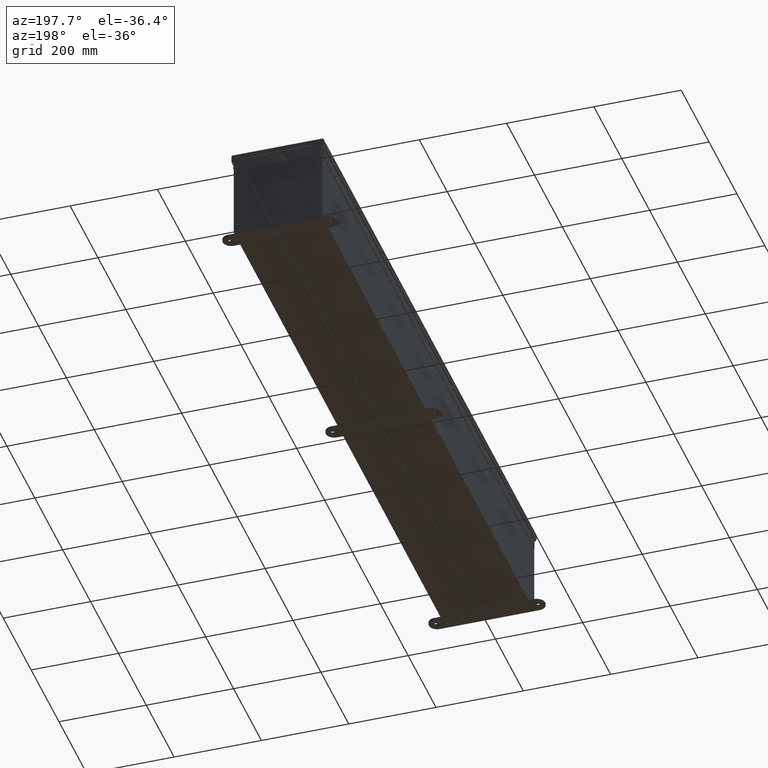
[diagram: clean part render]
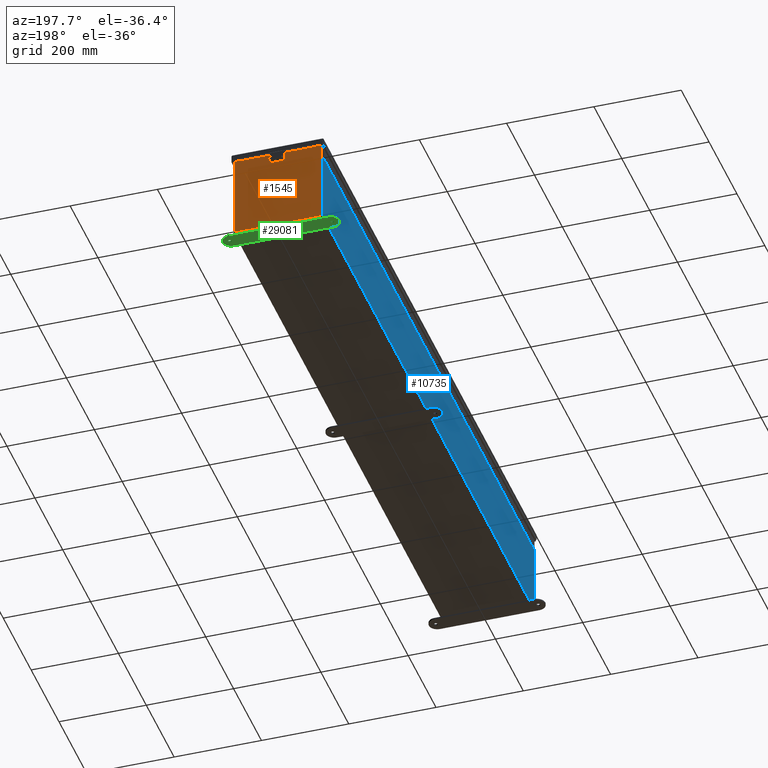
[diagram: same view with three faces highlighted in distinct colors, each labeled with its STEP entity id]
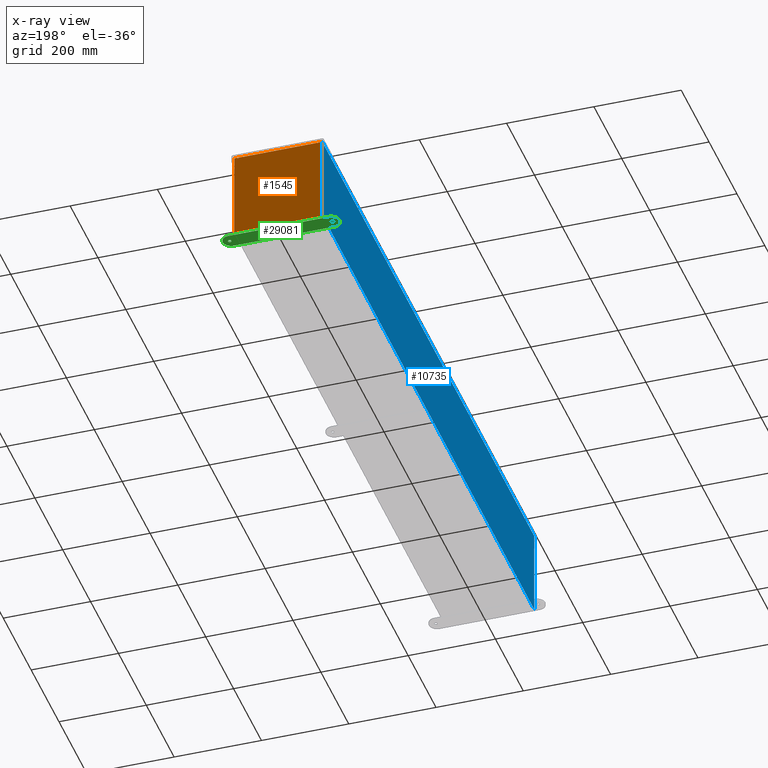
[diagram: x-ray of the same camera — body ghosted, the three highlighted faces saturated]
A machine part, auxiliary view with three faces highlighted in distinct colors.
The next image is the same camera in x-ray (body ghosted, the three faces saturated) — at least one of them is partly hidden behind the body in this view.
Their STEP definitions:

[orange] entity #1545 — the highlighted planar face has unit normal (0, -1, 0).
#68 = LINE ( 'NONE', #29814, #16807 ) ;
#103 = EDGE_CURVE ( 'NONE', #25600, #26783, #6706, .T. ) ;
#230 = EDGE_CURVE ( 'NONE', #33754, #13214, #19253, .T. ) ;
#686 = CARTESIAN_POINT ( 'NONE',  ( -3.582300000000000000, 0.0000000000000000000, 3.912299999999999200 ) ) ;
#1545 = ADVANCED_FACE ( 'NONE', ( #12372 ), #3800, .F. ) ;
#1753 = DIRECTION ( 'NONE',  ( 0.0000000000000000000, 0.0000000000000000000, -1.000000000000000000 ) ) ;
#2679 = DIRECTION ( 'NONE',  ( -0.0000000000000000000, -0.0000000000000000000, 1.000000000000000000 ) ) ;
#3800 = PLANE ( 'NONE',  #35254 ) ;
#4922 = ORIENTED_EDGE ( 'NONE', *, *, #22307, .F. ) ;
#5171 = ORIENTED_EDGE ( 'NONE', *, *, #16122, .T. ) ;
#5269 = VECTOR ( 'NONE', #35371, 39.37007874015748100 ) ;
#5681 = VECTOR ( 'NONE', #32198, 39.37007874015748100 ) ;
#6096 = CARTESIAN_POINT ( 'NONE',  ( -3.925300000000000500, 0.0000000000000000000, -3.925300000000000500 ) ) ;
#6706 = LINE ( 'NONE', #28840, #5681 ) ;
#6928 = EDGE_LOOP ( 'NONE', ( #4922, #31500, #14462, #28888, #14134, #19732, #10389, #19469, #5171, #15814, #34929, #23452 ) ) ;
#6958 = CARTESIAN_POINT ( 'NONE',  ( 3.619649999999999100, 0.0000000000000000000, 3.874949999999999200 ) ) ;
#7452 = DIRECTION ( 'NONE',  ( 0.0000000000000000000, 0.0000000000000000000, 1.000000000000000000 ) ) ;
#8365 = LINE ( 'NONE', #12064, #42859 ) ;
#8387 = CIRCLE ( 'NONE', #13928, 0.01867500000000003900 ) ;
#9347 = VECTOR ( 'NONE', #9556, 39.37007874015748100 ) ;
#9394 = AXIS2_PLACEMENT_3D ( 'NONE', #41780, #21781, #1753 ) ;
#9417 = CARTESIAN_POINT ( 'NONE',  ( -3.925300000000000500, 0.0000000000000000000, 3.925300000000000500 ) ) ;
#9556 = DIRECTION ( 'NONE',  ( 1.000000000000000000, 0.0000000000000000000, 0.0000000000000000000 ) ) ;
#10086 = CIRCLE ( 'NONE', #9394, 0.01867500000000003900 ) ;
#10389 = ORIENTED_EDGE ( 'NONE', *, *, #31175, .F. ) ;
#10877 = VERTEX_POINT ( 'NONE', #21941 ) ;
#11804 = CARTESIAN_POINT ( 'NONE',  ( -3.925300000000000500, 0.0000000000000000000, 3.925300000000000500 ) ) ;
#12064 = CARTESIAN_POINT ( 'NONE',  ( -3.582300000000000000, 0.0000000000000000000, 3.912299999999999200 ) ) ;
#12372 = FACE_OUTER_BOUND ( 'NONE', #6928, .T. ) ;
#12940 = LINE ( 'NONE', #19323, #20727 ) ;
#13074 = CARTESIAN_POINT ( 'NONE',  ( 3.619650000000000500, 0.0000000000000000000, 3.925300000000000500 ) ) ;
#13214 = VERTEX_POINT ( 'NONE', #20771 ) ;
#13928 = AXIS2_PLACEMENT_3D ( 'NONE', #38603, #18597, #41957 ) ;
#14045 = DIRECTION ( 'NONE',  ( 0.0000000000000000000, -1.000000000000000000, 0.0000000000000000000 ) ) ;
#14134 = ORIENTED_EDGE ( 'NONE', *, *, #43104, .F. ) ;
#14226 = CARTESIAN_POINT ( 'NONE',  ( 3.925299999999999100, 0.0000000000000000000, 3.925300000000000500 ) ) ;
#14247 = VECTOR ( 'NONE', #22387, 39.37007874015748100 ) ;
#14462 = ORIENTED_EDGE ( 'NONE', *, *, #22958, .F. ) ;
#14590 = VERTEX_POINT ( 'NONE', #686 ) ;
#14900 = DIRECTION ( 'NONE',  ( -1.000000000000000000, -0.0000000000000000000, -0.0000000000000000000 ) ) ;
#15108 = LINE ( 'NONE', #34764, #40711 ) ;
#15217 = CARTESIAN_POINT ( 'NONE',  ( 3.619649999999915200, 0.0000000000000000000, -7.867722221753078700E-014 ) ) ;
#15814 = ORIENTED_EDGE ( 'NONE', *, *, #25930, .T. ) ;
#16122 = EDGE_CURVE ( 'NONE', #26783, #10877, #38301, .T. ) ;
#16409 = EDGE_CURVE ( 'NONE', #27361, #27675, #10086, .T. ) ;
#16640 = CARTESIAN_POINT ( 'NONE',  ( 3.582299999999999200, 0.0000000000000000000, 3.912299999999999200 ) ) ;
#16807 = VECTOR ( 'NONE', #33157, 39.37007874015748100 ) ;
#16948 = CARTESIAN_POINT ( 'NONE',  ( -3.582300000000000000, 0.0000000000000000000, 3.874949999999999200 ) ) ;
#18265 = VERTEX_POINT ( 'NONE', #6096 ) ;
#18597 = DIRECTION ( 'NONE',  ( -0.0000000000000000000, 1.000000000000000000, -0.0000000000000000000 ) ) ;
#19253 = LINE ( 'NONE', #9417, #9347 ) ;
#19323 = CARTESIAN_POINT ( 'NONE',  ( -3.925300000000000500, 0.0000000000000000000, 3.925300000000000500 ) ) ;
#19469 = ORIENTED_EDGE ( 'NONE', *, *, #103, .T. ) ;
#19732 = ORIENTED_EDGE ( 'NONE', *, *, #23591, .F. ) ;
#20727 = VECTOR ( 'NONE', #2679, 39.37007874015748100 ) ;
#20771 = CARTESIAN_POINT ( 'NONE',  ( -3.619650000000000500, 0.0000000000000000000, 3.925300000000000500 ) ) ;
#21781 = DIRECTION ( 'NONE',  ( -0.0000000000000000000, 1.000000000000000000, -0.0000000000000000000 ) ) ;
#21941 = CARTESIAN_POINT ( 'NONE',  ( 3.925299999999999100, 0.0000000000000000000, -3.925300000000000500 ) ) ;
#22307 = EDGE_CURVE ( 'NONE', #27675, #13214, #41940, .T. ) ;
#22387 = DIRECTION ( 'NONE',  ( 0.0000000000000000000, 0.0000000000000000000, 1.000000000000000000 ) ) ;
#22730 = DIRECTION ( 'NONE',  ( 0.0000000000000000000, 0.0000000000000000000, -1.000000000000000000 ) ) ;
#22958 = EDGE_CURVE ( 'NONE', #14590, #27361, #68, .T. ) ;
#23452 = ORIENTED_EDGE ( 'NONE', *, *, #230, .T. ) ;
#23591 = EDGE_CURVE ( 'NONE', #24591, #33822, #8387, .T. ) ;
#24098 = CARTESIAN_POINT ( 'NONE',  ( 3.582299999999999200, 0.0000000000000000000, 0.0000000000000000000 ) ) ;
#24591 = VERTEX_POINT ( 'NONE', #6958 ) ;
#25400 = EDGE_CURVE ( 'NONE', #14590, #41632, #8365, .T. ) ;
#25600 = VERTEX_POINT ( 'NONE', #13074 ) ;
#25674 = CARTESIAN_POINT ( 'NONE',  ( 3.582299999999999200, 0.0000000000000000000, 3.874949999999999200 ) ) ;
#25930 = EDGE_CURVE ( 'NONE', #10877, #18265, #15108, .T. ) ;
#26783 = VERTEX_POINT ( 'NONE', #14226 ) ;
#27326 = CARTESIAN_POINT ( 'NONE',  ( 0.0000000000000000000, 0.0000000000000000000, 0.0000000000000000000 ) ) ;
#27361 = VERTEX_POINT ( 'NONE', #16948 ) ;
#27402 = LINE ( 'NONE', #24098, #43076 ) ;
#27675 = VERTEX_POINT ( 'NONE', #42937 ) ;
#28840 = CARTESIAN_POINT ( 'NONE',  ( -3.925300000000000500, 0.0000000000000000000, 3.925300000000000500 ) ) ;
#28888 = ORIENTED_EDGE ( 'NONE', *, *, #25400, .T. ) ;
#29814 = CARTESIAN_POINT ( 'NONE',  ( -3.582300000000000000, 0.0000000000000000000, 0.0000000000000000000 ) ) ;
#31175 = EDGE_CURVE ( 'NONE', #25600, #24591, #38727, .T. ) ;
#31500 = ORIENTED_EDGE ( 'NONE', *, *, #16409, .F. ) ;
#32055 = DIRECTION ( 'NONE',  ( 1.000000000000000000, 0.0000000000000000000, 0.0000000000000000000 ) ) ;
#32198 = DIRECTION ( 'NONE',  ( 1.000000000000000000, 0.0000000000000000000, 0.0000000000000000000 ) ) ;
#33157 = DIRECTION ( 'NONE',  ( 0.0000000000000000000, 0.0000000000000000000, -1.000000000000000000 ) ) ;
#33754 = VERTEX_POINT ( 'NONE', #11804 ) ;
#33822 = VERTEX_POINT ( 'NONE', #25674 ) ;
#34764 = CARTESIAN_POINT ( 'NONE',  ( -3.925300000000000500, 0.0000000000000000000, -3.925300000000000500 ) ) ;
#34929 = ORIENTED_EDGE ( 'NONE', *, *, #40883, .T. ) ;
#35254 = AXIS2_PLACEMENT_3D ( 'NONE', #27326, #14045, #37395 ) ;
#35371 = DIRECTION ( 'NONE',  ( -2.170286390199978800E-014, 0.0000000000000000000, -1.000000000000000000 ) ) ;
#37395 = DIRECTION ( 'NONE',  ( 0.0000000000000000000, -0.0000000000000000000, -1.000000000000000000 ) ) ;
#38301 = LINE ( 'NONE', #42735, #39373 ) ;
#38603 = CARTESIAN_POINT ( 'NONE',  ( 3.600974999999999100, 0.0000000000000000000, 3.874949999999999200 ) ) ;
#38727 = LINE ( 'NONE', #15217, #5269 ) ;
#39373 = VECTOR ( 'NONE', #22730, 39.37007874015748100 ) ;
#40711 = VECTOR ( 'NONE', #14900, 39.37007874015748100 ) ;
#40883 = EDGE_CURVE ( 'NONE', #18265, #33754, #12940, .T. ) ;
#41632 = VERTEX_POINT ( 'NONE', #16640 ) ;
#41780 = CARTESIAN_POINT ( 'NONE',  ( -3.600975000000000000, 0.0000000000000000000, 3.874949999999999200 ) ) ;
#41940 = LINE ( 'NONE', #42394, #14247 ) ;
#41957 = DIRECTION ( 'NONE',  ( 0.0000000000000000000, 0.0000000000000000000, -1.000000000000000000 ) ) ;
#42394 = CARTESIAN_POINT ( 'NONE',  ( -3.619650000000000500, 0.0000000000000000000, 0.0000000000000000000 ) ) ;
#42735 = CARTESIAN_POINT ( 'NONE',  ( 3.925299999999999100, 0.0000000000000000000, 3.925300000000000500 ) ) ;
#42859 = VECTOR ( 'NONE', #32055, 39.37007874015748100 ) ;
#42937 = CARTESIAN_POINT ( 'NONE',  ( -3.619650000000000500, 0.0000000000000000000, 3.874949999999999200 ) ) ;
#43076 = VECTOR ( 'NONE', #7452, 39.37007874015748100 ) ;
#43104 = EDGE_CURVE ( 'NONE', #33822, #41632, #27402, .T. ) ;

[blue] entity #10735 — the highlighted planar face has unit normal (1, 0, 0).
#958 = ORIENTED_EDGE ( 'NONE', *, *, #23288, .F. ) ;
#1395 = DIRECTION ( 'NONE',  ( 3.176667049233174100E-032, 1.000000000000000000, -9.128890917264871200E-018 ) ) ;
#6143 = EDGE_CURVE ( 'NONE', #39065, #17362, #9013, .T. ) ;
#6787 = CARTESIAN_POINT ( 'NONE',  ( -4.000000000000027500, 29.92530000000000700, 7.837599999999999200 ) ) ;
#7853 = CARTESIAN_POINT ( 'NONE',  ( -4.000000000000029300, -29.92529999999996400, 7.837599999999999200 ) ) ;
#8280 = CARTESIAN_POINT ( 'NONE',  ( -4.000000000000000900, 29.92530000000001100, 0.01299999999999984300 ) ) ;
#9013 = LINE ( 'NONE', #7853, #10049 ) ;
#10049 = VECTOR ( 'NONE', #31245, 39.37007874015748100 ) ;
#10735 = ADVANCED_FACE ( 'NONE', ( #36876 ), #33537, .F. ) ;
#13530 = DIRECTION ( 'NONE',  ( 1.000000000000000000, 0.0000000000000000000, 3.479795166820705900E-015 ) ) ;
#13646 = EDGE_LOOP ( 'NONE', ( #37503, #17180, #958, #23213 ) ) ;
#14992 = LINE ( 'NONE', #40166, #22843 ) ;
#15396 = DIRECTION ( 'NONE',  ( 3.479795166820706300E-015, 0.0000000000000000000, -1.000000000000000000 ) ) ;
#15454 = LINE ( 'NONE', #38773, #32202 ) ;
#17180 = ORIENTED_EDGE ( 'NONE', *, *, #20492, .T. ) ;
#17362 = VERTEX_POINT ( 'NONE', #6787 ) ;
#20082 = CARTESIAN_POINT ( 'NONE',  ( -4.000000000000000900, 0.0000000000000000000, -1.417999849211356600E-014 ) ) ;
#20162 = DIRECTION ( 'NONE',  ( -3.479795166820706300E-015, 5.567672266913130300E-016, 1.000000000000000000 ) ) ;
#20492 = EDGE_CURVE ( 'NONE', #17362, #40005, #15454, .T. ) ;
#21573 = CARTESIAN_POINT ( 'NONE',  ( -4.000000000000000900, -29.92529999999996400, 0.01300000000000039000 ) ) ;
#22843 = VECTOR ( 'NONE', #20162, 39.37007874015748100 ) ;
#23213 = ORIENTED_EDGE ( 'NONE', *, *, #27284, .T. ) ;
#23288 = EDGE_CURVE ( 'NONE', #29978, #40005, #31957, .T. ) ;
#24761 = CARTESIAN_POINT ( 'NONE',  ( -4.000000000000029300, -29.92529999999996400, 7.837599999999999200 ) ) ;
#27284 = EDGE_CURVE ( 'NONE', #29978, #39065, #14992, .T. ) ;
#29929 = AXIS2_PLACEMENT_3D ( 'NONE', #20082, #13530, #36878 ) ;
#29978 = VERTEX_POINT ( 'NONE', #21573 ) ;
#31245 = DIRECTION ( 'NONE',  ( 0.0000000000000000000, 1.000000000000000000, 0.0000000000000000000 ) ) ;
#31957 = LINE ( 'NONE', #8280, #38730 ) ;
#32202 = VECTOR ( 'NONE', #15396, 39.37007874015748100 ) ;
#33537 = PLANE ( 'NONE',  #29929 ) ;
#36876 = FACE_OUTER_BOUND ( 'NONE', #13646, .T. ) ;
#36878 = DIRECTION ( 'NONE',  ( 3.479795166820705900E-015, 0.0000000000000000000, -1.000000000000000000 ) ) ;
#37503 = ORIENTED_EDGE ( 'NONE', *, *, #6143, .T. ) ;
#38730 = VECTOR ( 'NONE', #1395, 39.37007874015748100 ) ;
#38773 = CARTESIAN_POINT ( 'NONE',  ( -4.000000000000000900, 29.92530000000001100, -1.417999849211356600E-014 ) ) ;
#39065 = VERTEX_POINT ( 'NONE', #24761 ) ;
#40005 = VERTEX_POINT ( 'NONE', #40549 ) ;
#40166 = CARTESIAN_POINT ( 'NONE',  ( -4.000000000000000900, -29.92529999999996800, 2.484274269238439300E-015 ) ) ;
#40549 = CARTESIAN_POINT ( 'NONE',  ( -4.000000000000000900, 29.92530000000001100, 0.01300000000000011600 ) ) ;

[green] entity #29081 — the highlighted planar face has unit normal (0, 0, 1).
#1308 = CARTESIAN_POINT ( 'NONE',  ( -4.468500000000000600, 0.4120940649496067100, 0.0000000000000000000 ) ) ;
#1584 = CARTESIAN_POINT ( 'NONE',  ( -4.499999999999999100, 1.162094064949611600, 0.0000000000000000000 ) ) ;
#1624 = AXIS2_PLACEMENT_3D ( 'NONE', #7045, #30448, #10437 ) ;
#1697 = VECTOR ( 'NONE', #43004, 39.37007874015748100 ) ;
#1771 = AXIS2_PLACEMENT_3D ( 'NONE', #27408, #7413, #30807 ) ;
#2134 = DIRECTION ( 'NONE',  ( 1.000000000000000000, 0.0000000000000000000, 0.0000000000000000000 ) ) ;
#2231 = CARTESIAN_POINT ( 'NONE',  ( 4.468500000000000600, 0.4120940649496067100, 0.0000000000000000000 ) ) ;
#2248 = CARTESIAN_POINT ( 'NONE',  ( 4.499999999999999100, 0.4120940649496110900, 0.0000000000000000000 ) ) ;
#2759 = LINE ( 'NONE', #6332, #1697 ) ;
#3268 = EDGE_CURVE ( 'NONE', #41010, #21237, #34134, .T. ) ;
#4357 = DIRECTION ( 'NONE',  ( 0.0000000000000000000, 0.0000000000000000000, -1.000000000000000000 ) ) ;
#4404 = ORIENTED_EDGE ( 'NONE', *, *, #33751, .F. ) ;
#5603 = CIRCLE ( 'NONE', #1624, 0.7500000000000010000 ) ;
#5612 = DIRECTION ( 'NONE',  ( -1.000000000000000000, 0.0000000000000000000, 0.0000000000000000000 ) ) ;
#6332 = CARTESIAN_POINT ( 'NONE',  ( -4.499999999999999100, -0.3379059350503892900, 0.0000000000000000000 ) ) ;
#7045 = CARTESIAN_POINT ( 'NONE',  ( 4.499999999999999100, 0.4120940649496110900, 0.0000000000000000000 ) ) ;
#7413 = DIRECTION ( 'NONE',  ( 0.0000000000000000000, 0.0000000000000000000, 1.000000000000000000 ) ) ;
#7518 = AXIS2_PLACEMENT_3D ( 'NONE', #42146, #22144, #2134 ) ;
#8564 = CARTESIAN_POINT ( 'NONE',  ( -4.625000000000000000, 0.4120940649496067100, 0.0000000000000000000 ) ) ;
#8644 = ORIENTED_EDGE ( 'NONE', *, *, #18567, .T. ) ;
#8905 = CARTESIAN_POINT ( 'NONE',  ( 4.781499999999999400, 0.4120940649496067100, 0.0000000000000000000 ) ) ;
#9344 = EDGE_CURVE ( 'NONE', #27029, #38586, #15596, .T. ) ;
#10054 = CARTESIAN_POINT ( 'NONE',  ( -4.499999999999999100, 1.162094064949611600, 0.0000000000000000000 ) ) ;
#10119 = CARTESIAN_POINT ( 'NONE',  ( 4.499999999999999100, 1.162094064949611600, 0.0000000000000000000 ) ) ;
#10352 = CIRCLE ( 'NONE', #27333, 0.1564999999999992800 ) ;
#10365 = AXIS2_PLACEMENT_3D ( 'NONE', #2248, #25636, #5612 ) ;
#10437 = DIRECTION ( 'NONE',  ( -1.000000000000000000, 0.0000000000000000000, 0.0000000000000000000 ) ) ;
#11294 = CIRCLE ( 'NONE', #10365, 0.7500000000000010000 ) ;
#11962 = DIRECTION ( 'NONE',  ( 1.000000000000000000, 0.0000000000000000000, 0.0000000000000000000 ) ) ;
#14822 = FACE_BOUND ( 'NONE', #36904, .T. ) ;
#15122 = CARTESIAN_POINT ( 'NONE',  ( 4.625000000000000000, 0.4120940649496067100, 0.0000000000000000000 ) ) ;
#15198 = AXIS2_PLACEMENT_3D ( 'NONE', #30297, #36984, #16978 ) ;
#15596 = CIRCLE ( 'NONE', #29613, 0.1564999999999992800 ) ;
#16978 = DIRECTION ( 'NONE',  ( -1.000000000000000000, 0.0000000000000000000, 0.0000000000000000000 ) ) ;
#17353 = VERTEX_POINT ( 'NONE', #36738 ) ;
#17689 = ORIENTED_EDGE ( 'NONE', *, *, #34224, .T. ) ;
#18476 = DIRECTION ( 'NONE',  ( -1.000000000000000000, 0.0000000000000000000, 0.0000000000000000000 ) ) ;
#18507 = EDGE_LOOP ( 'NONE', ( #17689, #21088, #42186, #20394, #20222 ) ) ;
#18567 = EDGE_CURVE ( 'NONE', #38586, #27029, #10352, .T. ) ;
#18871 = ORIENTED_EDGE ( 'NONE', *, *, #9344, .T. ) ;
#18891 = EDGE_CURVE ( 'NONE', #43093, #41010, #5603, .T. ) ;
#20222 = ORIENTED_EDGE ( 'NONE', *, *, #37562, .T. ) ;
#20394 = ORIENTED_EDGE ( 'NONE', *, *, #24913, .T. ) ;
#21088 = ORIENTED_EDGE ( 'NONE', *, *, #18891, .T. ) ;
#21237 = VERTEX_POINT ( 'NONE', #10054 ) ;
#22144 = DIRECTION ( 'NONE',  ( 0.0000000000000000000, 0.0000000000000000000, 1.000000000000000000 ) ) ;
#22652 = VERTEX_POINT ( 'NONE', #1308 ) ;
#24385 = CARTESIAN_POINT ( 'NONE',  ( 4.625000000000000000, 0.4120940649496067100, 0.0000000000000000000 ) ) ;
#24913 = EDGE_CURVE ( 'NONE', #21237, #41898, #28756, .T. ) ;
#24969 = DIRECTION ( 'NONE',  ( -1.000000000000000000, -1.214154663850783900E-016, 0.0000000000000000000 ) ) ;
#25636 = DIRECTION ( 'NONE',  ( 0.0000000000000000000, 0.0000000000000000000, 1.000000000000000000 ) ) ;
#27029 = VERTEX_POINT ( 'NONE', #2231 ) ;
#27071 = CARTESIAN_POINT ( 'NONE',  ( 4.499999999999999100, -0.3379059350503892900, 0.0000000000000000000 ) ) ;
#27333 = AXIS2_PLACEMENT_3D ( 'NONE', #15122, #38482, #18476 ) ;
#27408 = CARTESIAN_POINT ( 'NONE',  ( -4.625000000000000000, 0.4120940649496067100, 0.0000000000000000000 ) ) ;
#27752 = DIRECTION ( 'NONE',  ( -1.000000000000000000, 0.0000000000000000000, 0.0000000000000000000 ) ) ;
#28681 = CIRCLE ( 'NONE', #1771, 0.1564999999999992800 ) ;
#28756 = CIRCLE ( 'NONE', #7518, 0.7499999999999998900 ) ;
#29081 = ADVANCED_FACE ( 'NONE', ( #33654, #31564, #14822 ), #40192, .F. ) ;
#29613 = AXIS2_PLACEMENT_3D ( 'NONE', #24385, #4357, #27752 ) ;
#30297 = CARTESIAN_POINT ( 'NONE',  ( 4.499999999999999100, 0.4120940649496110900, 0.0000000000000000000 ) ) ;
#30448 = DIRECTION ( 'NONE',  ( 0.0000000000000000000, 0.0000000000000000000, 1.000000000000000000 ) ) ;
#30807 = DIRECTION ( 'NONE',  ( 1.000000000000000000, 0.0000000000000000000, 0.0000000000000000000 ) ) ;
#31564 = FACE_BOUND ( 'NONE', #35876, .T. ) ;
#31962 = DIRECTION ( 'NONE',  ( 0.0000000000000000000, 0.0000000000000000000, 1.000000000000000000 ) ) ;
#33028 = AXIS2_PLACEMENT_3D ( 'NONE', #8564, #31962, #11962 ) ;
#33654 = FACE_OUTER_BOUND ( 'NONE', #18507, .T. ) ;
#33751 = EDGE_CURVE ( 'NONE', #17353, #22652, #36913, .T. ) ;
#34134 = LINE ( 'NONE', #1584, #43013 ) ;
#34224 = EDGE_CURVE ( 'NONE', #37694, #43093, #11294, .T. ) ;
#35876 = EDGE_LOOP ( 'NONE', ( #37598, #4404 ) ) ;
#36738 = CARTESIAN_POINT ( 'NONE',  ( -4.781499999999999400, 0.4120940649496067100, 0.0000000000000000000 ) ) ;
#36904 = EDGE_LOOP ( 'NONE', ( #8644, #18871 ) ) ;
#36913 = CIRCLE ( 'NONE', #33028, 0.1564999999999992800 ) ;
#36984 = DIRECTION ( 'NONE',  ( 0.0000000000000000000, 0.0000000000000000000, -1.000000000000000000 ) ) ;
#37384 = CARTESIAN_POINT ( 'NONE',  ( 5.250000000000000900, 0.4120940649496110900, 0.0000000000000000000 ) ) ;
#37562 = EDGE_CURVE ( 'NONE', #41898, #37694, #2759, .T. ) ;
#37598 = ORIENTED_EDGE ( 'NONE', *, *, #40007, .F. ) ;
#37694 = VERTEX_POINT ( 'NONE', #27071 ) ;
#38482 = DIRECTION ( 'NONE',  ( 0.0000000000000000000, 0.0000000000000000000, -1.000000000000000000 ) ) ;
#38586 = VERTEX_POINT ( 'NONE', #8905 ) ;
#40007 = EDGE_CURVE ( 'NONE', #22652, #17353, #28681, .T. ) ;
#40192 = PLANE ( 'NONE',  #15198 ) ;
#41010 = VERTEX_POINT ( 'NONE', #10119 ) ;
#41555 = CARTESIAN_POINT ( 'NONE',  ( -4.499999999999999100, -0.3379059350503892900, 0.0000000000000000000 ) ) ;
#41898 = VERTEX_POINT ( 'NONE', #41555 ) ;
#42146 = CARTESIAN_POINT ( 'NONE',  ( -4.499999999999999100, 0.4120940649496110900, 0.0000000000000000000 ) ) ;
#42186 = ORIENTED_EDGE ( 'NONE', *, *, #3268, .T. ) ;
#43004 = DIRECTION ( 'NONE',  ( 1.000000000000000000, -1.214154663850783900E-016, 0.0000000000000000000 ) ) ;
#43013 = VECTOR ( 'NONE', #24969, 39.37007874015748100 ) ;
#43093 = VERTEX_POINT ( 'NONE', #37384 ) ;